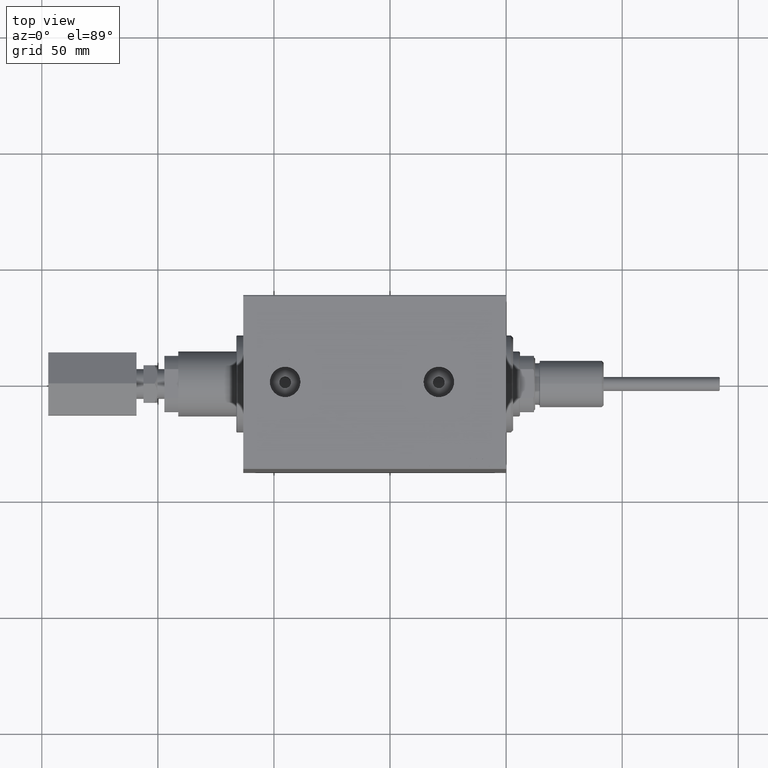
[diagram: clean part render]
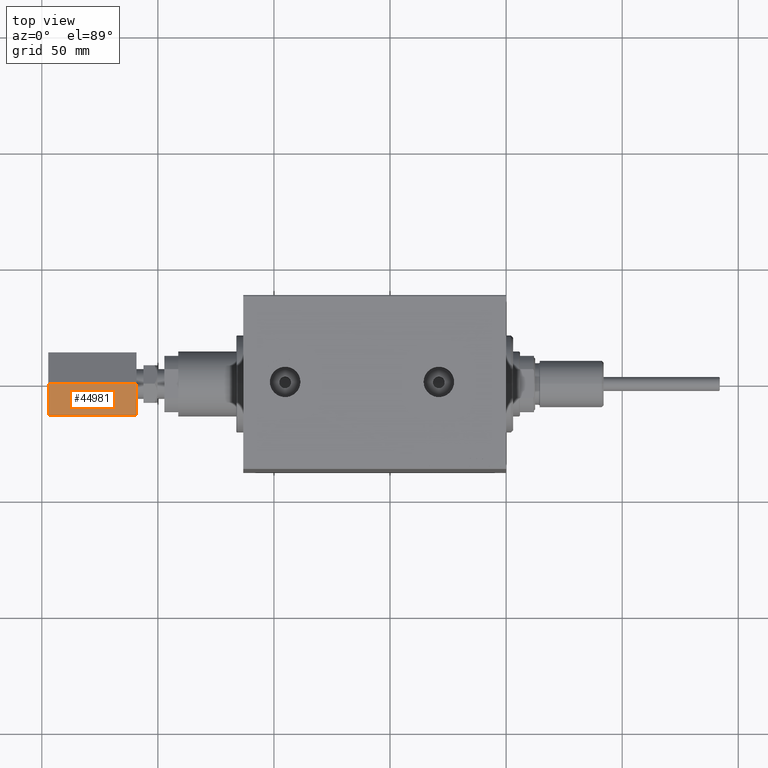
[diagram: same view with one face highlighted and labeled with its STEP entity id]
A machine part, top view. The second image highlights one B-rep face of the part: STEP entity #44981.
In plain terms, the highlighted planar face has unit normal (0, 0.5, -0.866).
Its self-contained STEP definition (entity closure, byte-faithful):
#292 = CARTESIAN_POINT ( 'NONE',  ( 46.00000000000000711, -7.794228634059949812, 13.49999999999999822 ) ) ;
#1004 = DIRECTION ( 'NONE',  ( 0.000000000000000000, -0.4999999999999997780, -0.8660254037844387076 ) ) ;
#1464 = EDGE_LOOP ( 'NONE', ( #46695, #16029, #23770, #4244 ) ) ;
#4244 = ORIENTED_EDGE ( 'NONE', *, *, #27347, .T. ) ;
#4372 = LINE ( 'NONE', #292, #13694 ) ;
#5008 = LINE ( 'NONE', #45384, #38171 ) ;
#6068 = LINE ( 'NONE', #35866, #15717 ) ;
#6647 = CARTESIAN_POINT ( 'NONE',  ( 84.00000000000000000, -7.794228634059949812, 13.49999999999999822 ) ) ;
#11593 = AXIS2_PLACEMENT_3D ( 'NONE', #6647, #21566, #32132 ) ;
#13694 = VECTOR ( 'NONE', #1004, 1000.000000000000227 ) ;
#15717 = VECTOR ( 'NONE', #32496, 1000.000000000000000 ) ;
#16029 = ORIENTED_EDGE ( 'NONE', *, *, #25892, .F. ) ;
#16147 = CARTESIAN_POINT ( 'NONE',  ( 46.00000000000000711, -15.58845726811989607, -5.983477626642369342E-15 ) ) ;
#16545 = VECTOR ( 'NONE', #17516, 1000.000000000000000 ) ;
#17485 = FACE_OUTER_BOUND ( 'NONE', #1464, .T. ) ;
#17516 = DIRECTION ( 'NONE',  ( -1.000000000000000000, -0.000000000000000000, -0.000000000000000000 ) ) ;
#17609 = CARTESIAN_POINT ( 'NONE',  ( 84.00000000000000000, -15.58845726811989607, -5.983477626642369342E-15 ) ) ;
#20400 = DIRECTION ( 'NONE',  ( 0.000000000000000000, -0.4999999999999997780, -0.8660254037844387076 ) ) ;
#21566 = DIRECTION ( 'NONE',  ( 0.000000000000000000, 0.8660254037844387076, -0.4999999999999998335 ) ) ;
#22525 = VERTEX_POINT ( 'NONE', #41427 ) ;
#23770 = ORIENTED_EDGE ( 'NONE', *, *, #33197, .F. ) ;
#23925 = CARTESIAN_POINT ( 'NONE',  ( 84.00000000000000000, -7.794228634059949812, 13.49999999999999822 ) ) ;
#24924 = PLANE ( 'NONE',  #11593 ) ;
#25892 = EDGE_CURVE ( 'NONE', #37647, #27022, #6068, .T. ) ;
#27022 = VERTEX_POINT ( 'NONE', #16147 ) ;
#27347 = EDGE_CURVE ( 'NONE', #38253, #22525, #28084, .T. ) ;
#27845 = CARTESIAN_POINT ( 'NONE',  ( 84.00000000000000000, -7.794228634059949812, 13.49999999999999822 ) ) ;
#28084 = LINE ( 'NONE', #27845, #16545 ) ;
#32132 = DIRECTION ( 'NONE',  ( 0.000000000000000000, 0.4999999999999998335, 0.8660254037844387076 ) ) ;
#32496 = DIRECTION ( 'NONE',  ( -1.000000000000000000, -0.000000000000000000, -0.000000000000000000 ) ) ;
#33197 = EDGE_CURVE ( 'NONE', #38253, #37647, #5008, .T. ) ;
#35219 = EDGE_CURVE ( 'NONE', #22525, #27022, #4372, .T. ) ;
#35866 = CARTESIAN_POINT ( 'NONE',  ( 84.00000000000000000, -15.58845726811989607, -5.983477626642369342E-15 ) ) ;
#37647 = VERTEX_POINT ( 'NONE', #17609 ) ;
#38171 = VECTOR ( 'NONE', #20400, 1000.000000000000227 ) ;
#38253 = VERTEX_POINT ( 'NONE', #23925 ) ;
#41427 = CARTESIAN_POINT ( 'NONE',  ( 46.00000000000000711, -7.794228634059949812, 13.49999999999999822 ) ) ;
#44981 = ADVANCED_FACE ( 'NONE', ( #17485 ), #24924, .F. ) ;
#45384 = CARTESIAN_POINT ( 'NONE',  ( 84.00000000000000000, -7.794228634059949812, 13.49999999999999822 ) ) ;
#46695 = ORIENTED_EDGE ( 'NONE', *, *, #35219, .T. ) ;